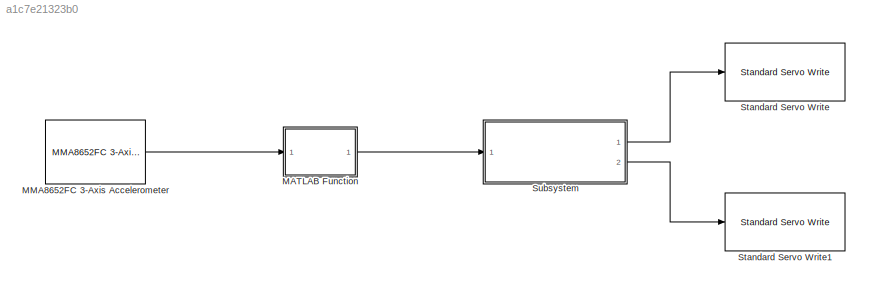
MODEL slx_a1c7e21323b0
KIND model
CONFIG AbsTol = auto
CONFIG EnableMultiTasking = on
CONFIG FixedStep = auto
CONFIG MaxStep = auto
CONFIG MinStep = auto
CONFIG RelTol = 1e-3
CONFIG SampleTimeConstraint = Unconstrained
CONFIG SolverName = FixedStepAuto
CONFIG StartTime = 0.0
CONFIG StopTime = 10.0
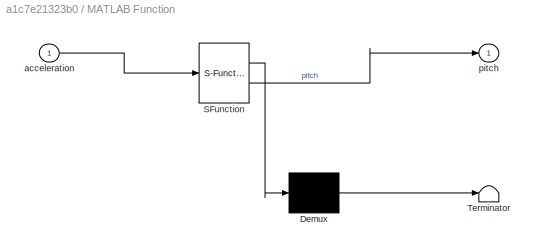
BLOCK [SubSystem] MATLAB Function
  ErrorFcn = Stateflow.Translate.translate
  PermitHierarchicalResolution = ExplicitOnly
  Ports = [1, 1]
  RequestExecContextInheritance = off
  SFBlockType = MATLAB Function
  TreatAsAtomicUnit = on
BLOCK [Demux] MATLAB Function/ Demux 
  Outputs = 1
  Ports = [1, 1]
BLOCK [S-Function] MATLAB Function/ SFunction 
  EnableBusSupport = off
  FunctionName = sf_sfun
  PortCounts = [1 2]
  Ports = [1, 2]
  SFcnIsStateOwnerBlock = off
  SFunctionDeploymentMode = off
  Tag = Stateflow S-Function 2
BLOCK [Terminator] MATLAB Function/ Terminator 
BLOCK [Inport] MATLAB Function/acceleration
BLOCK [Outport] MATLAB Function/pitch
BLOCK [Reference] MMA8652FC 3-Axis Accelerometer  REF=microbitaccellib/MMA8652FC 3-Axis
Accelerometer
  Ports = [0, 1]
  SourceBlock = microbitaccellib/MMA8652FC 3-Axis\nAccelerometer
  SourceProductBaseCode = MICROBIT
  SourceType = microbit.mma8652
BLOCK [Reference] Standard Servo Write  REF=arduinolib/Standard Servo Write
  Ports = [1]
  SourceBlock = arduinolib/Standard Servo Write
  SourceProductBaseCode = ARDUINO
  SourceType = Arduino Standard Servo Write
BLOCK [Reference] Standard Servo Write1  REF=arduinolib/Standard Servo Write
  Ports = [1]
  SourceBlock = arduinolib/Standard Servo Write
  SourceProductBaseCode = ARDUINO
  SourceType = Arduino Standard Servo Write
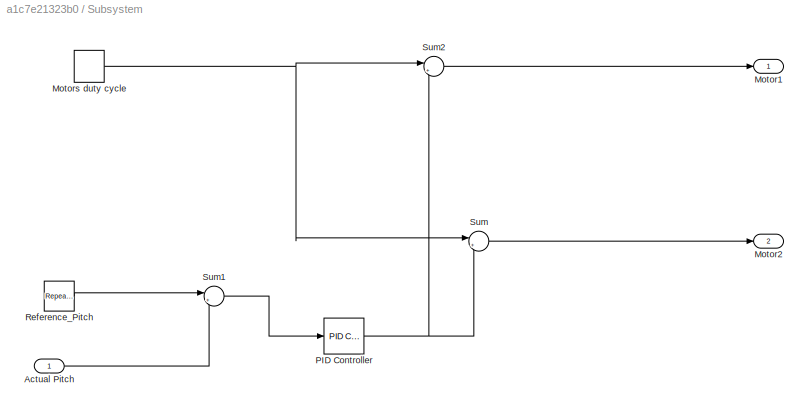
BLOCK [SubSystem] Subsystem
  Ports = [1, 2]
  RequestExecContextInheritance = off
BLOCK [Inport] Subsystem/Actual Pitch
BLOCK [Outport] Subsystem/Motor1
BLOCK [Outport] Subsystem/Motor2
  Port = 2
BLOCK [DiscretePulseGenerator] Subsystem/Motors duty cycle
  Period = 10
  Ports = [0, 1]
  PulseType = Time based
  PulseWidth = 55
BLOCK [Reference] Subsystem/PID Controller  REF=slpidlib/PID Controller
  Ports = [1, 1]
  SourceBlock = slpidlib/PID Controller
  SourceProductBaseCode = SL
  SourceType = PID 1dof
BLOCK [Reference] Subsystem/Reference_Pitch  REF=simulink/Sources/Repeating
Sequence
Interpolated
  Ports = [0, 1]
  SourceBlock = simulink/Sources/Repeating\nSequence\nInterpolated
  SourceProductBaseCode = SL
  SourceType = Repeating Sequence Interpolated
BLOCK [Sum] Subsystem/Sum
  Inputs = |+-
  Ports = [2, 1]
BLOCK [Sum] Subsystem/Sum1
  Inputs = |+-
  Ports = [2, 1]
BLOCK [Sum] Subsystem/Sum2
  Inputs = |++
  Ports = [2, 1]
LINE MATLAB Function:1 -> Subsystem:1
LINE MMA8652FC 3-Axis Accelerometer:1 -> MATLAB Function:1
LINE Subsystem/Actual Pitch:1 -> Subsystem/Sum1:2
NET Subsystem/Motors duty cycle:1 -> Subsystem/Sum2:1, Subsystem/Sum:1
NET Subsystem/PID Controller:1 -> Subsystem/Sum2:2, Subsystem/Sum:2
LINE Subsystem/Reference_Pitch:1 -> Subsystem/Sum1:1
LINE Subsystem/Sum1:1 -> Subsystem/PID Controller:1
LINE Subsystem/Sum2:1 -> Subsystem/Motor1:1
LINE Subsystem/Sum:1 -> Subsystem/Motor2:1
LINE Subsystem:1 -> Standard Servo Write:1
LINE Subsystem:2 -> Standard Servo Write1:1
note: NET lines group one-source signal fan-out (src -> all destinations, sorted); 1:1 wires keep LINE
CHART MATLAB Function states=1 transitions=1
  STATE_LABEL 'eML_blk_kernel()'
  STATE_LABEL 'SCRIPT:\nfunction pitch =convertToPitch (acceleration) \n\nacceleration_x=acceleration(1);\nacceleration_y=acceleration(2);\nacceleration_z=acceleration(3);\n\npitch= atand(acceleration_x/sqrt(acceleration_y^2+acceleration_z^2)); \n\nend '
CHART  states=0 transitions=0
